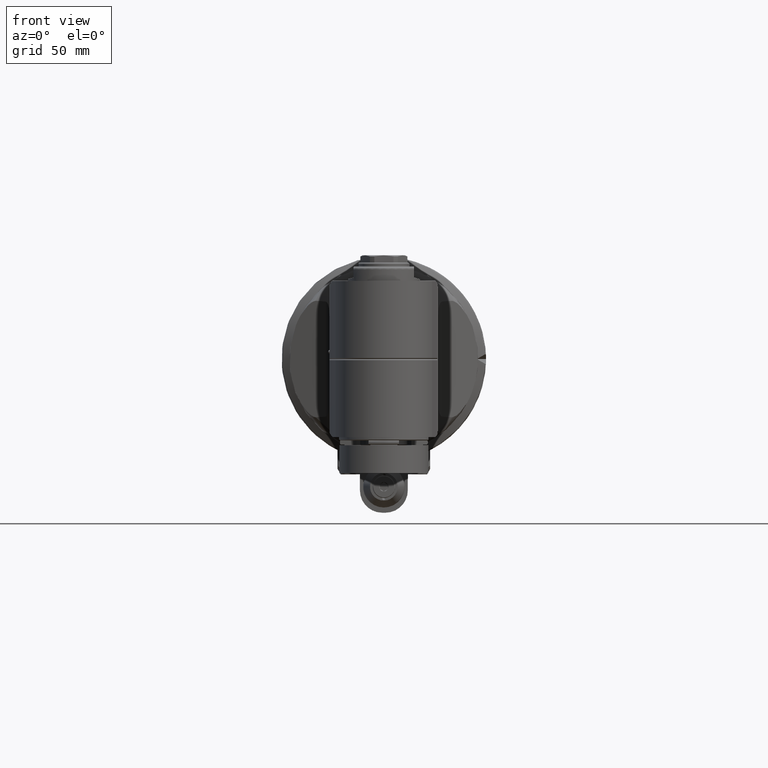
[diagram: clean part render]
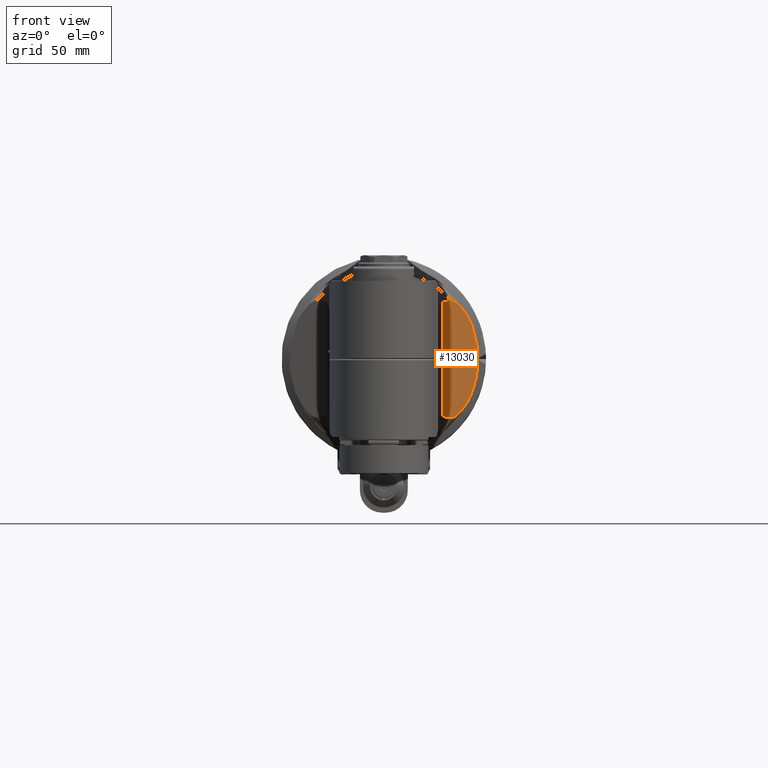
[diagram: same view with one face highlighted and labeled with its STEP entity id]
A machine part, front view. The second image highlights one B-rep face of the part: STEP entity #13030.
In plain terms, the highlighted planar face has unit normal (-0.342, 0.9397, 0).
Its self-contained STEP definition (entity closure, byte-faithful):
#251=ELLIPSE('',#14252,62.1233155913701,36.4919332929638);
#252=ELLIPSE('',#14255,62.1233155913701,36.4919332929638);
#253=ELLIPSE('',#14259,62.7864885761012,59.);
#378=B_SPLINE_CURVE_WITH_KNOTS('',3,(#36205,#36206,#36207,#36208,#36209,
#36210,#36211,#36212,#36213,#36214,#36215,#36216,#36217,#36218,#36219,#36220),
 .UNSPECIFIED.,.F.,.F.,(4,2,2,2,2,2,2,4),(-11.6559211212692,-11.6409107029047,
-11.4943819982332,-11.1814479598136,-10.7714451747777,-10.3614423897419,
-9.99473310465734,-9.68030428146149),.UNSPECIFIED.);
#379=B_SPLINE_CURVE_WITH_KNOTS('',3,(#36223,#36224,#36225,#36226,#36227,
#36228,#36229,#36230,#36231,#36232,#36233,#36234,#36235,#36236,#36237,#36238),
 .UNSPECIFIED.,.F.,.F.,(4,2,2,2,2,2,2,4),(-5.61335365542816,-5.29892483223231,
-4.93221554714777,-4.52221276211191,-4.11220997707606,-3.79927593865646,
-3.65274723398491,-3.6377368155865),.UNSPECIFIED.);
#1947=FACE_OUTER_BOUND('',#2789,.T.);
#2789=EDGE_LOOP('',(#10570,#10571,#10572,#10573,#10574,#10575));
#3939=LINE('',#36183,#4771);
#4771=VECTOR('',#17077,72.12424357349);
#5856=VERTEX_POINT('',#36161);
#5857=VERTEX_POINT('',#36163);
#5858=VERTEX_POINT('',#36182);
#5859=VERTEX_POINT('',#36199);
#5860=VERTEX_POINT('',#36204);
#5861=VERTEX_POINT('',#36221);
#7514=EDGE_CURVE('',#5856,#5857,#251,.T.);
#7516=EDGE_CURVE('',#5857,#5858,#3939,.T.);
#7518=EDGE_CURVE('',#5858,#5859,#252,.T.);
#7521=EDGE_CURVE('',#5856,#5860,#378,.T.);
#7522=EDGE_CURVE('',#5861,#5860,#253,.T.);
#7523=EDGE_CURVE('',#5861,#5859,#379,.T.);
#10570=ORIENTED_EDGE('',*,*,#7516,.F.);
#10571=ORIENTED_EDGE('',*,*,#7514,.F.);
#10572=ORIENTED_EDGE('',*,*,#7521,.T.);
#10573=ORIENTED_EDGE('',*,*,#7522,.F.);
#10574=ORIENTED_EDGE('',*,*,#7523,.T.);
#10575=ORIENTED_EDGE('',*,*,#7518,.F.);
#12480=PLANE('',#14258);
#13030=ADVANCED_FACE('',(#1947),#12480,.F.);
#14252=AXIS2_PLACEMENT_3D('',#36164,#17073,#17074);
#14255=AXIS2_PLACEMENT_3D('',#36200,#17080,#17081);
#14258=AXIS2_PLACEMENT_3D('',#36203,#17086,#17087);
#14259=AXIS2_PLACEMENT_3D('',#36222,#17088,#17089);
#17073=DIRECTION('center_axis',(-0.939692620785573,0.,-0.34202014332659));
#17074=DIRECTION('ref_axis',(0.34202014332659,-8.57821329636347E-16,-0.939692620785573));
#17077=DIRECTION('',(0.,-1.,0.));
#17080=DIRECTION('center_axis',(-0.939692620785573,0.,-0.34202014332659));
#17081=DIRECTION('ref_axis',(0.34202014332659,-8.57821329636347E-16,-0.939692620785573));
#17086=DIRECTION('center_axis',(-0.939692620785573,0.,-0.34202014332659));
#17087=DIRECTION('ref_axis',(0.34202014332659,0.,-0.939692620785573));
#17088=DIRECTION('center_axis',(-0.939692620785573,0.,-0.34202014332659));
#17089=DIRECTION('ref_axis',(0.34202014332659,0.,-0.939692620785573));
#36161=CARTESIAN_POINT('',(197.409284567,36.44687063471,42.66502826897));
#36163=CARTESIAN_POINT('',(199.6051566057,36.06212178675,36.63191942669));
#36164=CARTESIAN_POINT('Origin',(196.35368996423,0.,45.5652506041856));
#36182=CARTESIAN_POINT('',(199.6051566057,-36.06212178675,36.63191942669));
#36183=CARTESIAN_POINT('',(199.6051566057,36.06212178675,36.63191942669));
#36199=CARTESIAN_POINT('',(197.4092845672,-36.44687063461,42.66502826866));
#36200=CARTESIAN_POINT('Origin',(196.35368996423,0.,45.5652506041856));
#36203=CARTESIAN_POINT('Origin',(188.8806739901,-70.8000024,66.09719324827));
#36204=CARTESIAN_POINT('',(192.877745632,21.0547023408,55.11532916839));
#36205=CARTESIAN_POINT('Ctrl Pts',(197.409284567006,36.4468706347954,42.6650282689696));
#36206=CARTESIAN_POINT('Ctrl Pts',(197.391047714427,36.4484286364763,42.7151336096335));
#36207=CARTESIAN_POINT('Ctrl Pts',(197.373165303814,36.4478667741677,42.7642651289963));
#36208=CARTESIAN_POINT('Ctrl Pts',(197.189156047637,36.4256948878175,43.2698264053125));
#36209=CARTESIAN_POINT('Ctrl Pts',(196.998861617747,36.2413914190877,43.7926560544818));
#36210=CARTESIAN_POINT('Ctrl Pts',(196.520537533363,35.6170940452927,45.1068406755056));
#36211=CARTESIAN_POINT('Ctrl Pts',(196.172274863777,34.8890786511238,46.0636844962267));
#36212=CARTESIAN_POINT('Ctrl Pts',(195.543014997024,33.3327687859636,47.792561771097));
#36213=CARTESIAN_POINT('Ctrl Pts',(195.189002332906,32.2522221110194,48.7652035719592));
#36214=CARTESIAN_POINT('Ctrl Pts',(194.541334184448,29.939315392723,50.5446571851398));
#36215=CARTESIAN_POINT('Ctrl Pts',(194.247715797414,28.7068665473144,51.351367073451));
#36216=CARTESIAN_POINT('Ctrl Pts',(193.779751006175,26.5089003436582,52.637089770475));
#36217=CARTESIAN_POINT('Ctrl Pts',(193.555560964059,25.3362847852855,53.2530468488537));
#36218=CARTESIAN_POINT('Ctrl Pts',(193.176660968213,23.1031873174629,54.2940660316686));
#36219=CARTESIAN_POINT('Ctrl Pts',(193.01627012163,22.0509882551708,54.7347362609418));
#36220=CARTESIAN_POINT('Ctrl Pts',(192.877745631946,21.0547023408076,55.1153291683901));
#36221=CARTESIAN_POINT('',(192.877745632,-21.0547023408,55.11532916839));
#36222=CARTESIAN_POINT('Origin',(212.938084901085,0.,0.));
#36223=CARTESIAN_POINT('Ctrl Pts',(192.877745631946,-21.0547023408076,55.1153291683901));
#36224=CARTESIAN_POINT('Ctrl Pts',(193.01627012163,-22.0509882551707,54.7347362609418));
#36225=CARTESIAN_POINT('Ctrl Pts',(193.176660968213,-23.1031873174629,54.2940660316687));
#36226=CARTESIAN_POINT('Ctrl Pts',(193.555560964059,-25.3362847852855,53.2530468488537));
#36227=CARTESIAN_POINT('Ctrl Pts',(193.779751006175,-26.5089003436582,52.637089770475));
#36228=CARTESIAN_POINT('Ctrl Pts',(194.247715797414,-28.7068665473144,51.351367073451));
#36229=CARTESIAN_POINT('Ctrl Pts',(194.541334184448,-29.939315392723,50.5446571851398));
#36230=CARTESIAN_POINT('Ctrl Pts',(195.189002332906,-32.2522221110194,48.7652035719592));
#36231=CARTESIAN_POINT('Ctrl Pts',(195.543014997024,-33.3327687859636,47.792561771097));
#36232=CARTESIAN_POINT('Ctrl Pts',(196.172274863777,-34.8890786511238,46.0636844962267));
#36233=CARTESIAN_POINT('Ctrl Pts',(196.520537533363,-35.6170940452927,45.1068406755056));
#36234=CARTESIAN_POINT('Ctrl Pts',(196.998861617747,-36.2413914190877,43.7926560544818));
#36235=CARTESIAN_POINT('Ctrl Pts',(197.189156047637,-36.4256948878175,43.2698264053125));
#36236=CARTESIAN_POINT('Ctrl Pts',(197.373165303853,-36.4478667741723,42.76426512889));
#36237=CARTESIAN_POINT('Ctrl Pts',(197.391047714508,-36.4484286364788,42.715133609411));
#36238=CARTESIAN_POINT('Ctrl Pts',(197.40928456713,-36.4468706347848,42.6650282686292));